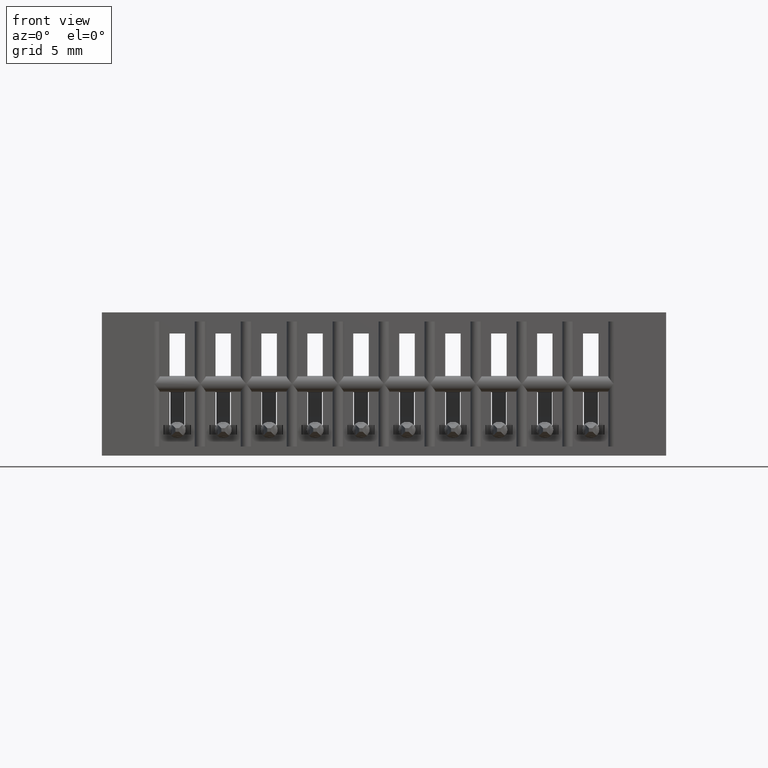
[diagram: clean part render]
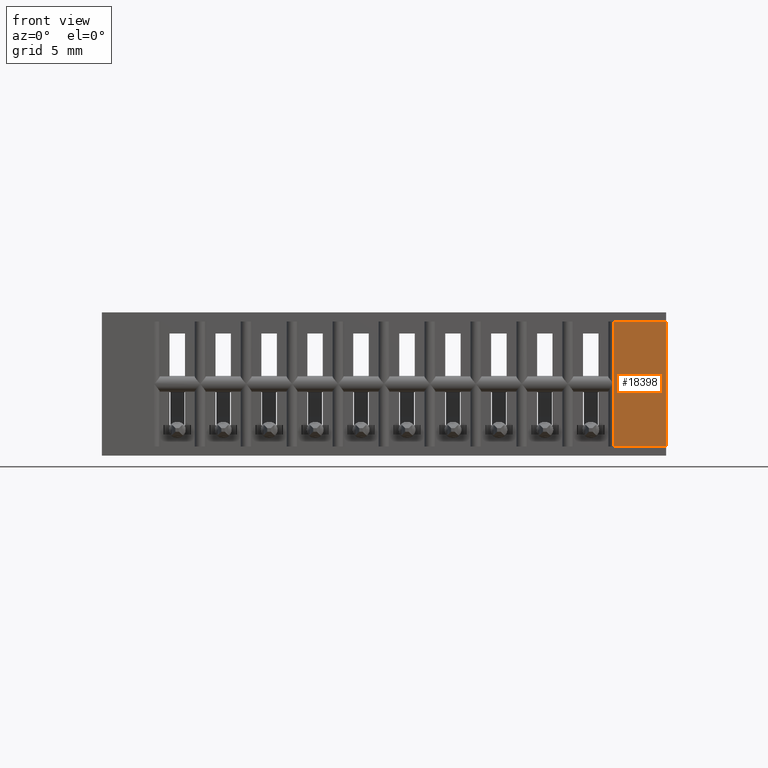
[diagram: same view with one face highlighted and labeled with its STEP entity id]
A machine part, front view. The second image highlights one B-rep face of the part: STEP entity #18398.
In plain terms, the highlighted planar face has unit normal (0, -1, 0).
Its self-contained STEP definition (entity closure, byte-faithful):
#202 = VECTOR ( 'NONE', #18973, 39.37007874015748143 ) ;
#235 = CARTESIAN_POINT ( 'NONE',  ( 1.392499999999999627, 0.0000000000000000000, -0.3900000000000000133 ) ) ;
#392 = DIRECTION ( 'NONE',  ( 0.0000000000000000000, -0.0000000000000000000, -1.000000000000000000 ) ) ;
#547 = DIRECTION ( 'NONE',  ( -1.000000000000000000, -0.0000000000000000000, -0.0000000000000000000 ) ) ;
#1429 = LINE ( 'NONE', #235, #1805 ) ;
#1763 = CARTESIAN_POINT ( 'NONE',  ( 1.534999999999999920, 0.0000000000000000000, 0.0000000000000000000 ) ) ;
#1805 = VECTOR ( 'NONE', #10906, 39.37007874015748143 ) ;
#3975 = CARTESIAN_POINT ( 'NONE',  ( 1.534999999999999920, 0.0000000000000000000, -0.3649999999999999911 ) ) ;
#4104 = VECTOR ( 'NONE', #6364, 39.37007874015748143 ) ;
#4576 = EDGE_CURVE ( 'NONE', #13509, #6315, #18694, .T. ) ;
#4866 = CARTESIAN_POINT ( 'NONE',  ( 1.534999999999999920, 0.0000000000000000000, -0.02500000000000000486 ) ) ;
#6315 = VERTEX_POINT ( 'NONE', #12692 ) ;
#6364 = DIRECTION ( 'NONE',  ( 0.0000000000000000000, 0.0000000000000000000, -1.000000000000000000 ) ) ;
#6459 = CARTESIAN_POINT ( 'NONE',  ( 1.534999999999999920, 0.0000000000000000000, -0.3649999999999999911 ) ) ;
#6475 = CARTESIAN_POINT ( 'NONE',  ( 0.0000000000000000000, 0.0000000000000000000, -0.3900000000000000133 ) ) ;
#6596 = AXIS2_PLACEMENT_3D ( 'NONE', #6475, #12338, #392 ) ;
#7472 = EDGE_CURVE ( 'NONE', #10718, #12864, #13791, .T. ) ;
#8567 = ORIENTED_EDGE ( 'NONE', *, *, #18053, .F. ) ;
#8663 = EDGE_CURVE ( 'NONE', #9661, #12864, #18648, .T. ) ;
#9271 = PLANE ( 'NONE',  #6596 ) ;
#9459 = FACE_OUTER_BOUND ( 'NONE', #10789, .T. ) ;
#9661 = VERTEX_POINT ( 'NONE', #4866 ) ;
#10704 = VECTOR ( 'NONE', #15466, 39.37007874015748143 ) ;
#10718 = VERTEX_POINT ( 'NONE', #15221 ) ;
#10789 = EDGE_LOOP ( 'NONE', ( #8567, #13428, #19249, #13581, #18475 ) ) ;
#10906 = DIRECTION ( 'NONE',  ( -0.0000000000000000000, -0.0000000000000000000, 1.000000000000000000 ) ) ;
#12338 = DIRECTION ( 'NONE',  ( 0.0000000000000000000, -1.000000000000000000, 0.0000000000000000000 ) ) ;
#12400 = CARTESIAN_POINT ( 'NONE',  ( 1.392499999999999627, 0.0000000000000000000, -0.3900000000000000133 ) ) ;
#12692 = CARTESIAN_POINT ( 'NONE',  ( 1.392499999999999627, 0.0000000000000000000, -0.3649999999999999911 ) ) ;
#12797 = CARTESIAN_POINT ( 'NONE',  ( 1.534999999999999920, 0.0000000000000000000, -0.02500000000000000486 ) ) ;
#12864 = VERTEX_POINT ( 'NONE', #13080 ) ;
#13080 = CARTESIAN_POINT ( 'NONE',  ( 1.392499999999999627, 0.0000000000000000000, -0.02500000000000000486 ) ) ;
#13428 = ORIENTED_EDGE ( 'NONE', *, *, #4576, .F. ) ;
#13509 = VERTEX_POINT ( 'NONE', #6459 ) ;
#13575 = EDGE_CURVE ( 'NONE', #9661, #13509, #16901, .T. ) ;
#13581 = ORIENTED_EDGE ( 'NONE', *, *, #8663, .T. ) ;
#13791 = LINE ( 'NONE', #12400, #10704 ) ;
#14541 = VECTOR ( 'NONE', #547, 39.37007874015748143 ) ;
#15221 = CARTESIAN_POINT ( 'NONE',  ( 1.392499999999999627, 0.0000000000000000000, -0.1949999999999995626 ) ) ;
#15466 = DIRECTION ( 'NONE',  ( -0.0000000000000000000, -0.0000000000000000000, 1.000000000000000000 ) ) ;
#16901 = LINE ( 'NONE', #1763, #4104 ) ;
#18053 = EDGE_CURVE ( 'NONE', #6315, #10718, #1429, .T. ) ;
#18398 = ADVANCED_FACE ( 'NONE', ( #9459 ), #9271, .T. ) ;
#18475 = ORIENTED_EDGE ( 'NONE', *, *, #7472, .F. ) ;
#18648 = LINE ( 'NONE', #12797, #14541 ) ;
#18694 = LINE ( 'NONE', #3975, #202 ) ;
#18973 = DIRECTION ( 'NONE',  ( -1.000000000000000000, -0.0000000000000000000, -0.0000000000000000000 ) ) ;
#19249 = ORIENTED_EDGE ( 'NONE', *, *, #13575, .F. ) ;